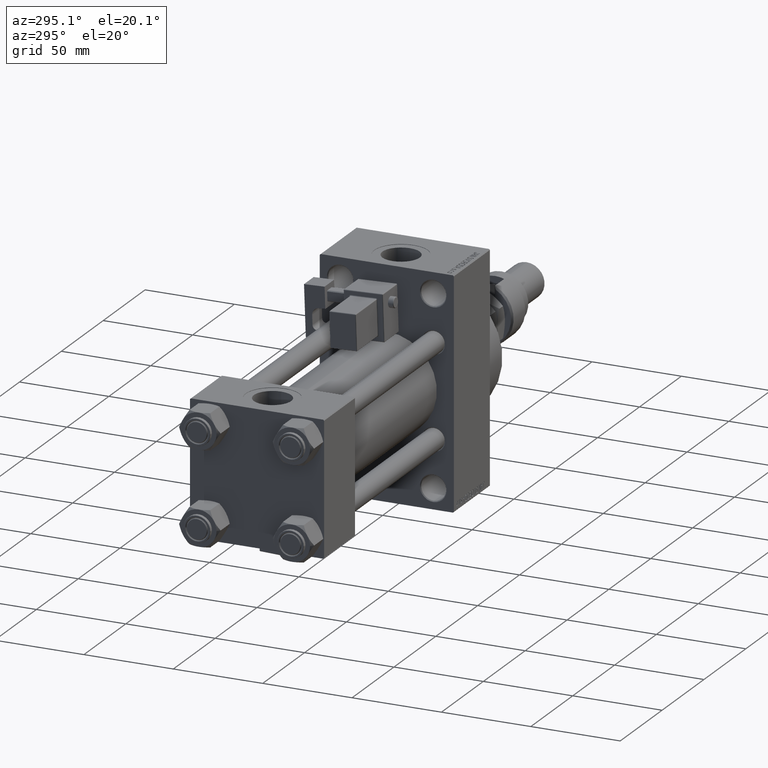
[diagram: clean part render]
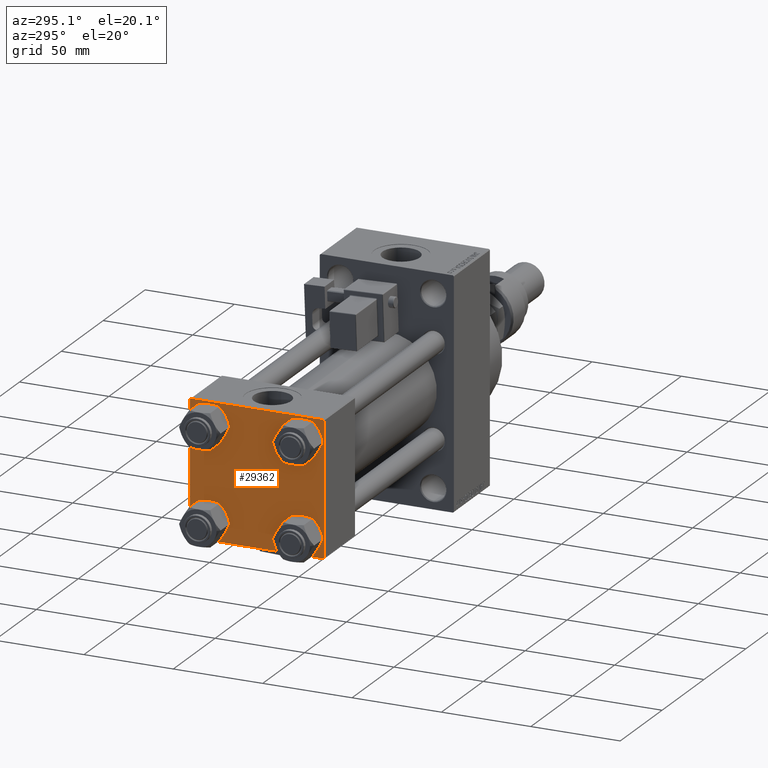
[diagram: same view with one face highlighted and labeled with its STEP entity id]
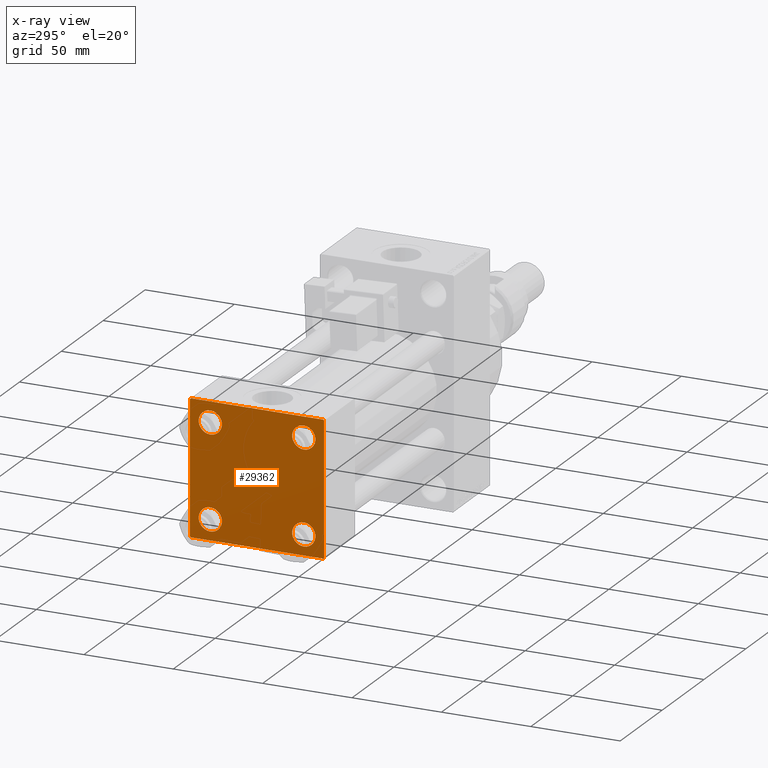
[diagram: x-ray of the same camera — body ghosted, the highlighted face saturated]
A machine part, auxiliary view. The second image highlights one B-rep face of the part: STEP entity #29362.
The next image is the same camera in x-ray: the body ghosted, the highlighted face saturated — about 0% of this face is hidden behind the body in this view.
In plain terms, the highlighted planar face has unit normal (-1, 0, 0).
Its self-contained STEP definition (entity closure, byte-faithful):
#4 = DIRECTION ( 'NONE',  ( 0.000000000000000000, 0.000000000000000000, 1.000000000000000000 ) ) ;
#360 = DIRECTION ( 'NONE',  ( 0.000000000000000000, 0.000000000000000000, 1.000000000000000000 ) ) ;
#385 = CARTESIAN_POINT ( 'NONE',  ( 0.000000000000000000, -26.14999999999999147, -32.65000000000002700 ) ) ;
#462 = CARTESIAN_POINT ( 'NONE',  ( 0.000000000000000000, 37.49999999999999289, 37.50000000000000000 ) ) ;
#598 = ORIENTED_EDGE ( 'NONE', *, *, #4047, .T. ) ;
#1295 = ORIENTED_EDGE ( 'NONE', *, *, #36331, .T. ) ;
#1543 = VERTEX_POINT ( 'NONE', #6865 ) ;
#1964 = ORIENTED_EDGE ( 'NONE', *, *, #51397, .T. ) ;
#2743 = CARTESIAN_POINT ( 'NONE',  ( 0.000000000000000000, 37.49999999999999289, 37.00000000000000000 ) ) ;
#2837 = CIRCLE ( 'NONE', #51935, 6.500000000000015987 ) ;
#3179 = DIRECTION ( 'NONE',  ( 0.000000000000000000, 0.000000000000000000, 1.000000000000000000 ) ) ;
#3525 = EDGE_LOOP ( 'NONE', ( #22250, #16627, #39374, #25274, #48719, #50888, #29420, #49981 ) ) ;
#3687 = FACE_BOUND ( 'NONE', #32095, .T. ) ;
#3839 = VERTEX_POINT ( 'NONE', #13997 ) ;
#3942 = FACE_OUTER_BOUND ( 'NONE', #3525, .T. ) ;
#4014 = VERTEX_POINT ( 'NONE', #46218 ) ;
#4047 = EDGE_CURVE ( 'NONE', #36475, #44419, #21793, .T. ) ;
#4468 = EDGE_LOOP ( 'NONE', ( #14368, #43308 ) ) ;
#4548 = EDGE_CURVE ( 'NONE', #47632, #1543, #28126, .T. ) ;
#4717 = FACE_BOUND ( 'NONE', #51391, .T. ) ;
#4817 = CIRCLE ( 'NONE', #31047, 6.500000000000023093 ) ;
#4896 = CARTESIAN_POINT ( 'NONE',  ( 0.000000000000000000, 36.99999999999997868, -37.50000000000000000 ) ) ;
#5068 = CARTESIAN_POINT ( 'NONE',  ( 0.000000000000000000, -37.50000000000000711, 36.99999999999999289 ) ) ;
#6107 = CARTESIAN_POINT ( 'NONE',  ( 0.000000000000000000, 37.49999999999999289, 37.50000000000000000 ) ) ;
#6205 = DIRECTION ( 'NONE',  ( 0.000000000000000000, 0.000000000000000000, 1.000000000000000000 ) ) ;
#6628 = CARTESIAN_POINT ( 'NONE',  ( 0.000000000000000000, 37.24999999999999289, 37.24999999999999289 ) ) ;
#6865 = CARTESIAN_POINT ( 'NONE',  ( 0.000000000000000000, -37.00000000000000711, 37.49999999999999289 ) ) ;
#6891 = DIRECTION ( 'NONE',  ( 0.000000000000000000, 0.7071067811865474617, -0.7071067811865474617 ) ) ;
#7588 = VERTEX_POINT ( 'NONE', #23940 ) ;
#8411 = CARTESIAN_POINT ( 'NONE',  ( 0.000000000000000000, 26.14999999999999858, -26.15000000000000213 ) ) ;
#8951 = DIRECTION ( 'NONE',  ( 1.000000000000000000, -0.000000000000000000, 0.000000000000000000 ) ) ;
#9112 = DIRECTION ( 'NONE',  ( 1.000000000000000000, -0.000000000000000000, 0.000000000000000000 ) ) ;
#9227 = LINE ( 'NONE', #462, #50467 ) ;
#10439 = VECTOR ( 'NONE', #49896, 1000.000000000000000 ) ;
#10591 = LINE ( 'NONE', #6628, #40761 ) ;
#11657 = DIRECTION ( 'NONE',  ( 1.000000000000000000, -0.000000000000000000, 0.000000000000000000 ) ) ;
#11662 = EDGE_CURVE ( 'NONE', #52392, #7588, #31508, .T. ) ;
#12315 = CARTESIAN_POINT ( 'NONE',  ( 0.000000000000000000, 26.14999999999999858, 26.15000000000000213 ) ) ;
#12316 = AXIS2_PLACEMENT_3D ( 'NONE', #52460, #32296, #48482 ) ;
#13997 = CARTESIAN_POINT ( 'NONE',  ( 0.000000000000000000, 26.14999999999999858, 32.65000000000002700 ) ) ;
#14129 = CARTESIAN_POINT ( 'NONE',  ( 0.000000000000000000, 26.14999999999999858, -26.15000000000000213 ) ) ;
#14368 = ORIENTED_EDGE ( 'NONE', *, *, #18584, .T. ) ;
#15794 = ORIENTED_EDGE ( 'NONE', *, *, #35015, .T. ) ;
#16604 = DIRECTION ( 'NONE',  ( 0.000000000000000000, 0.000000000000000000, 1.000000000000000000 ) ) ;
#16627 = ORIENTED_EDGE ( 'NONE', *, *, #45820, .T. ) ;
#17173 = DIRECTION ( 'NONE',  ( 0.000000000000000000, -1.000000000000000000, -9.251858538542971581E-17 ) ) ;
#17538 = CARTESIAN_POINT ( 'NONE',  ( 0.000000000000000000, -37.50000000000000711, 37.49999999999999289 ) ) ;
#18439 = CARTESIAN_POINT ( 'NONE',  ( 0.000000000000000000, 26.14999999999999858, -32.65000000000001990 ) ) ;
#18584 = EDGE_CURVE ( 'NONE', #7588, #52392, #2837, .T. ) ;
#18904 = EDGE_LOOP ( 'NONE', ( #51376, #598 ) ) ;
#19667 = DIRECTION ( 'NONE',  ( 1.000000000000000000, -0.000000000000000000, 0.000000000000000000 ) ) ;
#20116 = PLANE ( 'NONE',  #12316 ) ;
#20168 = DIRECTION ( 'NONE',  ( -0.000000000000000000, 0.7071067811865474617, 0.7071067811865474617 ) ) ;
#20339 = EDGE_CURVE ( 'NONE', #48091, #3839, #43556, .T. ) ;
#20632 = DIRECTION ( 'NONE',  ( 0.000000000000000000, 0.000000000000000000, 1.000000000000000000 ) ) ;
#21793 = CIRCLE ( 'NONE', #51447, 6.500000000000023093 ) ;
#21994 = CIRCLE ( 'NONE', #26230, 6.500000000000023093 ) ;
#22250 = ORIENTED_EDGE ( 'NONE', *, *, #42652, .T. ) ;
#22272 = DIRECTION ( 'NONE',  ( 0.000000000000000000, 0.000000000000000000, -1.000000000000000000 ) ) ;
#22753 = EDGE_CURVE ( 'NONE', #4014, #51354, #40426, .T. ) ;
#23245 = AXIS2_PLACEMENT_3D ( 'NONE', #40013, #11657, #3179 ) ;
#23940 = CARTESIAN_POINT ( 'NONE',  ( 0.000000000000000000, -26.14999999999999147, -19.64999999999999503 ) ) ;
#24070 = DIRECTION ( 'NONE',  ( 1.000000000000000000, -0.000000000000000000, 0.000000000000000000 ) ) ;
#24389 = VERTEX_POINT ( 'NONE', #4896 ) ;
#25274 = ORIENTED_EDGE ( 'NONE', *, *, #22753, .T. ) ;
#25531 = AXIS2_PLACEMENT_3D ( 'NONE', #48302, #32619, #40851 ) ;
#25825 = CARTESIAN_POINT ( 'NONE',  ( 0.000000000000000000, -26.14999999999999147, 32.65000000000003411 ) ) ;
#26087 = CARTESIAN_POINT ( 'NONE',  ( 0.000000000000000000, -26.14999999999999147, 26.15000000000000924 ) ) ;
#26230 = AXIS2_PLACEMENT_3D ( 'NONE', #31335, #19667, #4 ) ;
#27768 = CIRCLE ( 'NONE', #43838, 6.500000000000015987 ) ;
#28076 = FACE_BOUND ( 'NONE', #18904, .T. ) ;
#28126 = LINE ( 'NONE', #28376, #47237 ) ;
#28338 = LINE ( 'NONE', #40529, #31813 ) ;
#28376 = CARTESIAN_POINT ( 'NONE',  ( -0.000000000000000000, -37.25000000000000000, 37.25000000000000000 ) ) ;
#28694 = CARTESIAN_POINT ( 'NONE',  ( 0.000000000000000000, 36.99999999999999289, 37.50000000000000000 ) ) ;
#29362 = ADVANCED_FACE ( 'NONE', ( #28076, #40000, #4717, #3687, #3942 ), #20116, .T. ) ;
#29420 = ORIENTED_EDGE ( 'NONE', *, *, #47026, .F. ) ;
#29742 = DIRECTION ( 'NONE',  ( -0.000000000000000000, -0.7071067811865474617, -0.7071067811865474617 ) ) ;
#30325 = DIRECTION ( 'NONE',  ( 0.000000000000000000, 0.000000000000000000, 1.000000000000000000 ) ) ;
#31047 = AXIS2_PLACEMENT_3D ( 'NONE', #12315, #9112, #360 ) ;
#31335 = CARTESIAN_POINT ( 'NONE',  ( 0.000000000000000000, -26.14999999999999147, 26.15000000000000924 ) ) ;
#31508 = CIRCLE ( 'NONE', #25531, 6.500000000000015987 ) ;
#31813 = VECTOR ( 'NONE', #47452, 1000.000000000000000 ) ;
#32095 = EDGE_LOOP ( 'NONE', ( #15794, #39826 ) ) ;
#32296 = DIRECTION ( 'NONE',  ( -1.000000000000000000, 0.000000000000000000, -0.000000000000000000 ) ) ;
#32619 = DIRECTION ( 'NONE',  ( 1.000000000000000000, -0.000000000000000000, 0.000000000000000000 ) ) ;
#32711 = DIRECTION ( 'NONE',  ( 0.000000000000000000, -0.7071067811865524577, 0.7071067811865426878 ) ) ;
#34503 = LINE ( 'NONE', #17538, #10439 ) ;
#34776 = LINE ( 'NONE', #50695, #46836 ) ;
#35015 = EDGE_CURVE ( 'NONE', #3839, #48091, #4817, .T. ) ;
#35322 = VERTEX_POINT ( 'NONE', #2743 ) ;
#36204 = CIRCLE ( 'NONE', #48090, 6.500000000000015987 ) ;
#36331 = EDGE_CURVE ( 'NONE', #43869, #48300, #27768, .T. ) ;
#36439 = VERTEX_POINT ( 'NONE', #28694 ) ;
#36475 = VERTEX_POINT ( 'NONE', #41128 ) ;
#37304 = CARTESIAN_POINT ( 'NONE',  ( 0.000000000000000000, -26.14999999999999147, -26.15000000000000924 ) ) ;
#39374 = ORIENTED_EDGE ( 'NONE', *, *, #46955, .T. ) ;
#39826 = ORIENTED_EDGE ( 'NONE', *, *, #20339, .T. ) ;
#40000 = FACE_BOUND ( 'NONE', #4468, .T. ) ;
#40013 = CARTESIAN_POINT ( 'NONE',  ( 0.000000000000000000, 26.14999999999999858, 26.15000000000000213 ) ) ;
#40426 = LINE ( 'NONE', #41189, #51132 ) ;
#40529 = CARTESIAN_POINT ( 'NONE',  ( 0.000000000000000000, 37.49999999999999289, -37.50000000000000000 ) ) ;
#40761 = VECTOR ( 'NONE', #6891, 1000.000000000000114 ) ;
#40851 = DIRECTION ( 'NONE',  ( 0.000000000000000000, 0.000000000000000000, 1.000000000000000000 ) ) ;
#41128 = CARTESIAN_POINT ( 'NONE',  ( 0.000000000000000000, -26.14999999999999147, 19.64999999999999147 ) ) ;
#41189 = CARTESIAN_POINT ( 'NONE',  ( 0.000000000000000000, -37.24999999999975842, -37.25000000000027001 ) ) ;
#41711 = DIRECTION ( 'NONE',  ( 1.000000000000000000, -0.000000000000000000, 0.000000000000000000 ) ) ;
#41726 = EDGE_CURVE ( 'NONE', #44419, #36475, #21994, .T. ) ;
#42247 = DIRECTION ( 'NONE',  ( 1.000000000000000000, -0.000000000000000000, 0.000000000000000000 ) ) ;
#42652 = EDGE_CURVE ( 'NONE', #35322, #44936, #50373, .T. ) ;
#43225 = VECTOR ( 'NONE', #22272, 1000.000000000000000 ) ;
#43236 = CARTESIAN_POINT ( 'NONE',  ( 0.000000000000000000, 26.14999999999999858, -19.64999999999998792 ) ) ;
#43308 = ORIENTED_EDGE ( 'NONE', *, *, #11662, .T. ) ;
#43556 = CIRCLE ( 'NONE', #23245, 6.500000000000023093 ) ;
#43838 = AXIS2_PLACEMENT_3D ( 'NONE', #14129, #41711, #6205 ) ;
#43869 = VERTEX_POINT ( 'NONE', #43236 ) ;
#44419 = VERTEX_POINT ( 'NONE', #25825 ) ;
#44453 = CARTESIAN_POINT ( 'NONE',  ( 0.000000000000000000, -37.50000000000000000, -37.00000000000003553 ) ) ;
#44936 = VERTEX_POINT ( 'NONE', #51744 ) ;
#45256 = EDGE_CURVE ( 'NONE', #36439, #35322, #10591, .T. ) ;
#45797 = EDGE_CURVE ( 'NONE', #47632, #51354, #34503, .T. ) ;
#45820 = EDGE_CURVE ( 'NONE', #44936, #24389, #34776, .T. ) ;
#46218 = CARTESIAN_POINT ( 'NONE',  ( 0.000000000000000000, -37.00000000000002132, -37.50000000000000711 ) ) ;
#46836 = VECTOR ( 'NONE', #29742, 1000.000000000000114 ) ;
#46955 = EDGE_CURVE ( 'NONE', #24389, #4014, #28338, .T. ) ;
#47026 = EDGE_CURVE ( 'NONE', #36439, #1543, #9227, .T. ) ;
#47237 = VECTOR ( 'NONE', #20168, 1000.000000000000114 ) ;
#47452 = DIRECTION ( 'NONE',  ( 0.000000000000000000, -1.000000000000000000, -9.251858538542972814E-17 ) ) ;
#47632 = VERTEX_POINT ( 'NONE', #5068 ) ;
#47668 = CARTESIAN_POINT ( 'NONE',  ( 0.000000000000000000, 26.14999999999999858, 19.64999999999998437 ) ) ;
#48090 = AXIS2_PLACEMENT_3D ( 'NONE', #8411, #24070, #16604 ) ;
#48091 = VERTEX_POINT ( 'NONE', #47668 ) ;
#48300 = VERTEX_POINT ( 'NONE', #18439 ) ;
#48302 = CARTESIAN_POINT ( 'NONE',  ( 0.000000000000000000, -26.14999999999999147, -26.15000000000000924 ) ) ;
#48482 = DIRECTION ( 'NONE',  ( -0.000000000000000000, 0.000000000000000000, 1.000000000000000000 ) ) ;
#48719 = ORIENTED_EDGE ( 'NONE', *, *, #45797, .F. ) ;
#49896 = DIRECTION ( 'NONE',  ( 0.000000000000000000, 9.251858538542971581E-17, -1.000000000000000000 ) ) ;
#49981 = ORIENTED_EDGE ( 'NONE', *, *, #45256, .T. ) ;
#50373 = LINE ( 'NONE', #6107, #43225 ) ;
#50467 = VECTOR ( 'NONE', #17173, 1000.000000000000000 ) ;
#50695 = CARTESIAN_POINT ( 'NONE',  ( 0.000000000000000000, 37.24999999999998579, -37.24999999999998579 ) ) ;
#50888 = ORIENTED_EDGE ( 'NONE', *, *, #4548, .T. ) ;
#51132 = VECTOR ( 'NONE', #32711, 1000.000000000000000 ) ;
#51354 = VERTEX_POINT ( 'NONE', #44453 ) ;
#51376 = ORIENTED_EDGE ( 'NONE', *, *, #41726, .T. ) ;
#51391 = EDGE_LOOP ( 'NONE', ( #1295, #1964 ) ) ;
#51397 = EDGE_CURVE ( 'NONE', #48300, #43869, #36204, .T. ) ;
#51447 = AXIS2_PLACEMENT_3D ( 'NONE', #26087, #42247, #30325 ) ;
#51744 = CARTESIAN_POINT ( 'NONE',  ( 0.000000000000000000, 37.49999999999999289, -36.99999999999998579 ) ) ;
#51935 = AXIS2_PLACEMENT_3D ( 'NONE', #37304, #8951, #20632 ) ;
#52392 = VERTEX_POINT ( 'NONE', #385 ) ;
#52460 = CARTESIAN_POINT ( 'NONE',  ( 0.000000000000000000, 0.000000000000000000, 0.000000000000000000 ) ) ;